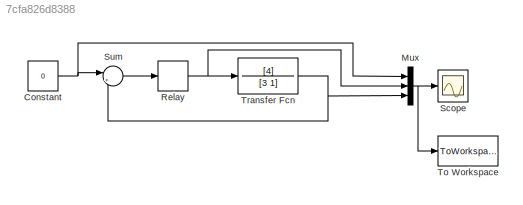
MODEL slx_7cfa826d8388
KIND model
BLOCK [Constant] Constant
  Value = 0
BLOCK [Mux] Mux
  DisplayOption = bar
  Inputs = 3
  Ports = [3, 1]
BLOCK [Relay] Relay
  InputProcessing = Elements as channels (sample based)
  OffOutputValue = -d+d_offset
  OffSwitchValue = -e+e_offset
  OnOutputValue = d+d_offset
  OnSwitchValue = e+e_offset
BLOCK [Scope] Scope
  DataFormat = StructureWithTime
  Floating = off
  NumInputPorts = 1
  Ports = [1]
  SampleTime = 0
  ShowLegends = off
  TimeRange = 10
  YMax = 1
  YMin = -1
  ZoomMode = xonly
BLOCK [Sum] Sum
  IconShape = round
  InputSameDT = off
  Inputs = |+-
  OutDataTypeStr = Inherit: Inherit via internal rule
  Ports = [2, 1]
  SaturateOnIntegerOverflow = off
BLOCK [ToWorkspace] To Workspace
  MaxDataPoints = inf
  Ports = [1]
  SampleTime = -1
  VariableName = simout
BLOCK [TransferFcn] Transfer Fcn
  Denominator = [3 1]
  Numerator = [4]
NET Constant:1 -> Mux:1, Sum:1
NET Mux:1 -> Scope:1, To Workspace:1
NET Relay:1 -> Mux:2, Transfer Fcn:1
LINE Sum:1 -> Relay:1
NET Transfer Fcn:1 -> Mux:3, Sum:2
note: NET lines group one-source signal fan-out (src -> all destinations, sorted); 1:1 wires keep LINE
